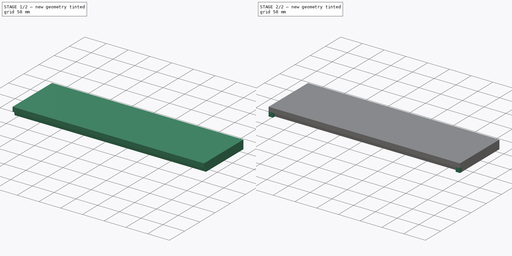
[diagram: build sequence overview — one tinted view per stage of 2, left to right]
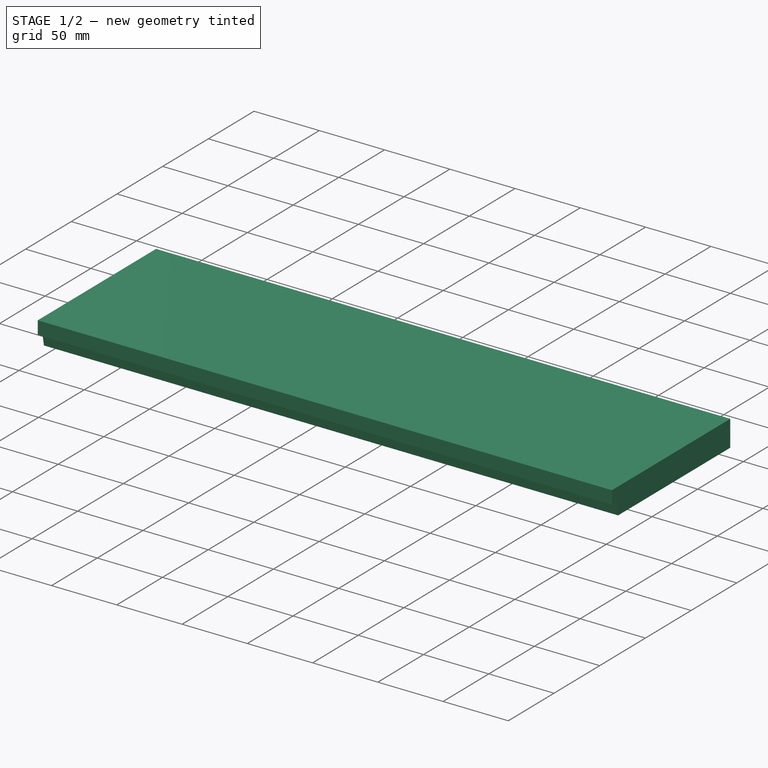
[diagram: stage 1 of 2 — iso view after this stage's code; geometry added in this stage tinted green]
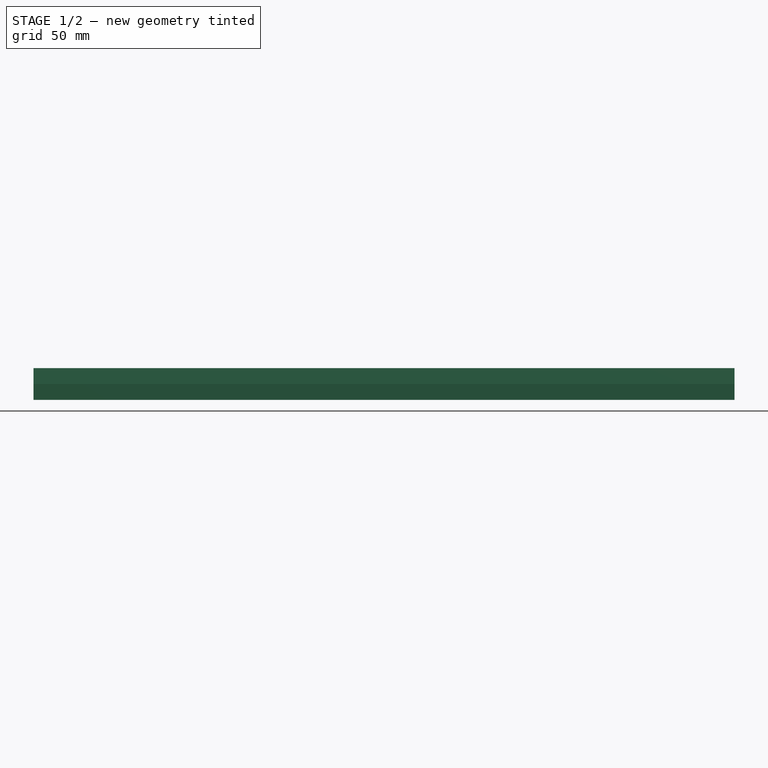
[diagram: stage 1 of 2 — front view after this stage's code; geometry added in this stage tinted green]
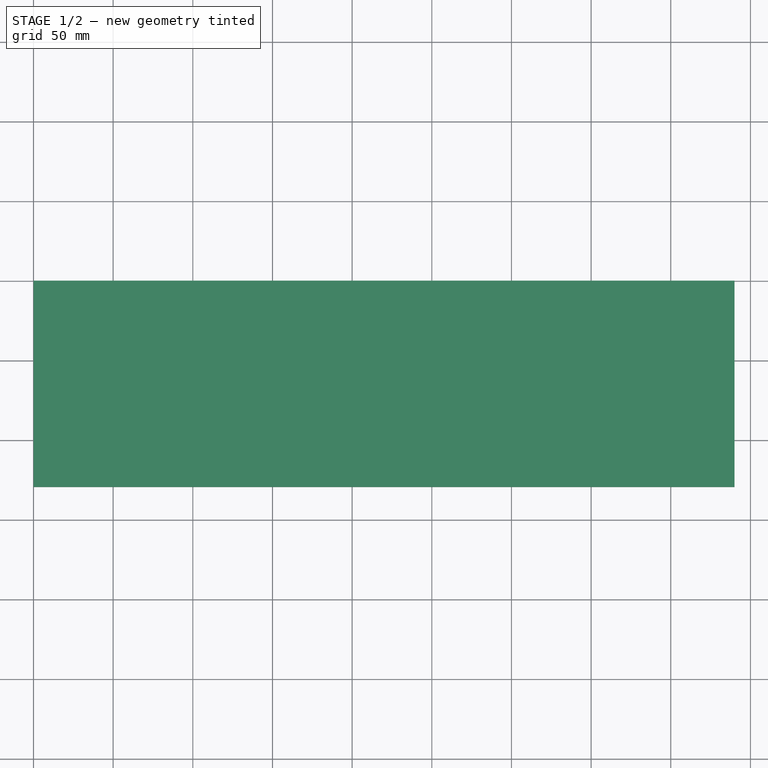
[diagram: stage 1 of 2 — top view after this stage's code; geometry added in this stage tinted green]
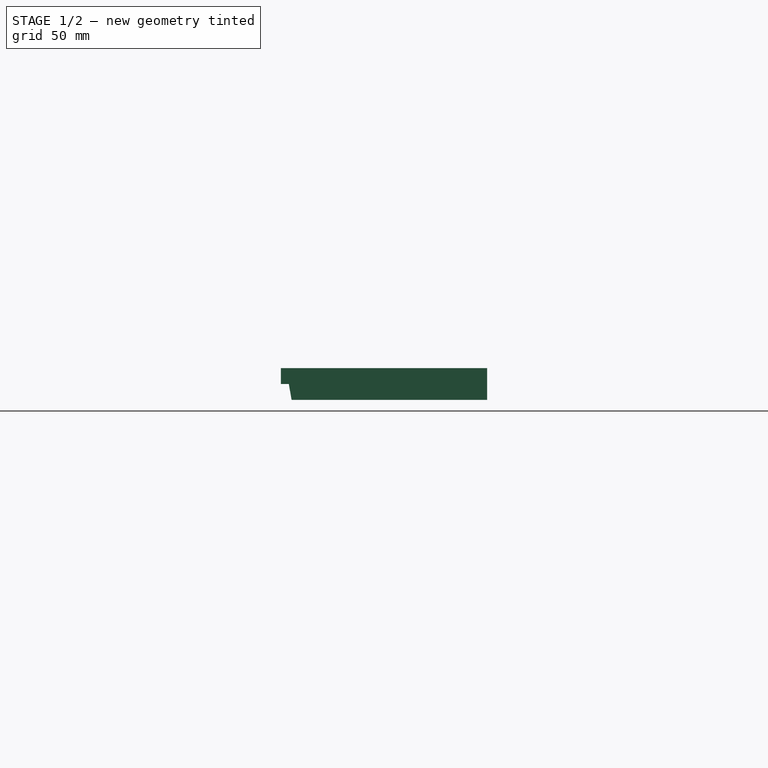
[diagram: stage 1 of 2 — right view after this stage's code; geometry added in this stage tinted green]
FCSTD DOCUMENT  (FreeCAD 0.16R6706 (Git))
Label: back_plate
License: All rights reserved
LicenseURL: http://en.wikipedia.org/wiki/All_rights_reserved
objects: Sketcher::SketchObject×4, PartDesign::Pad×3, PartDesign::Pocket×1, Part::Feature×1
note: 13 computed .brp shape members not serialized (recipe doc carries the construction recipe); baked Part::Feature solids carry a one-line shape summary decoded from their .brp

FEATURE [Sketcher::SketchObject] Sketch
  Placement = pos=(0,0,0) rot=(1,0,0;3.14159rad)
  sketch-geometry (4):
    g0: LineSegment StartX=0 StartY=0 StartZ=0 EndX=440 EndY=0 EndZ=0
    g1: LineSegment StartX=440 StartY=0 StartZ=0 EndX=440 EndY=129.5 EndZ=0
    g2: LineSegment StartX=440 StartY=129.5 StartZ=0 EndX=0 EndY=129.5 EndZ=0
    g3: LineSegment StartX=0 StartY=129.5 StartZ=0 EndX=0 EndY=0 EndZ=0
  constraints (11):
    c: Coincident(g0,g1)
    c: Coincident(g1,g2)
    c: Coincident(g2,g3)
    c: Coincident(g3,g0)
    c: Horizontal(g0)
    c: Horizontal(g2)
    c: Vertical(g1)
    c: Vertical(g3)
    c: Coincident(g0,g-1)
    c: DistanceX(g0,g0) = 440
    c: DistanceY(g1,g1) = 129.5
FEATURE [PartDesign::Pad] Pad
  Length = 20
  Length2 = 100
  Placement = pos=(0,0,0) rot=(1,0,0;3.14159rad)
  Sketch = -> Sketch
  Type = 0
FEATURE [Sketcher::SketchObject] Sketch001
  ExternalGeometry = -> [Pad]
  Placement = pos=(0,0,0) rot=(0.57735,0.57735,-0.57735;4.18879rad)
  Support = -> Pad [Face4]
  sketch-geometry (4):
    g0: LineSegment StartX=-129.5 StartY=20 StartZ=0 EndX=-122.737 EndY=20 EndZ=0
    g1: LineSegment StartX=-122.737 StartY=20 StartZ=0 EndX=-124.5 EndY=10 EndZ=0
    g2: LineSegment StartX=-124.5 StartY=10 StartZ=0 EndX=-129.5 EndY=10 EndZ=0
    g3: LineSegment StartX=-129.5 StartY=10 StartZ=0 EndX=-129.5 EndY=20 EndZ=0
  constraints (11):
    c: Coincident(g0,g1)
    c: Coincident(g1,g2)
    c: Coincident(g2,g3)
    c: Coincident(g3,g0)
    c: Horizontal(g0)
    c: Horizontal(g2)
    c: Vertical(g3)
    c: Coincident(g0,g-4)
    c: DistanceX(g2,g1) = 5
    c: DistanceX(g0,g0) = 6.76327
    c: DistanceY(g2,g0) = 10
FEATURE [PartDesign::Pocket] Pocket
  Length = 5
  Placement = pos=(0,0,0) rot=(1,0,0;3.14159rad)
  Sketch = -> Sketch001
  Type = 1
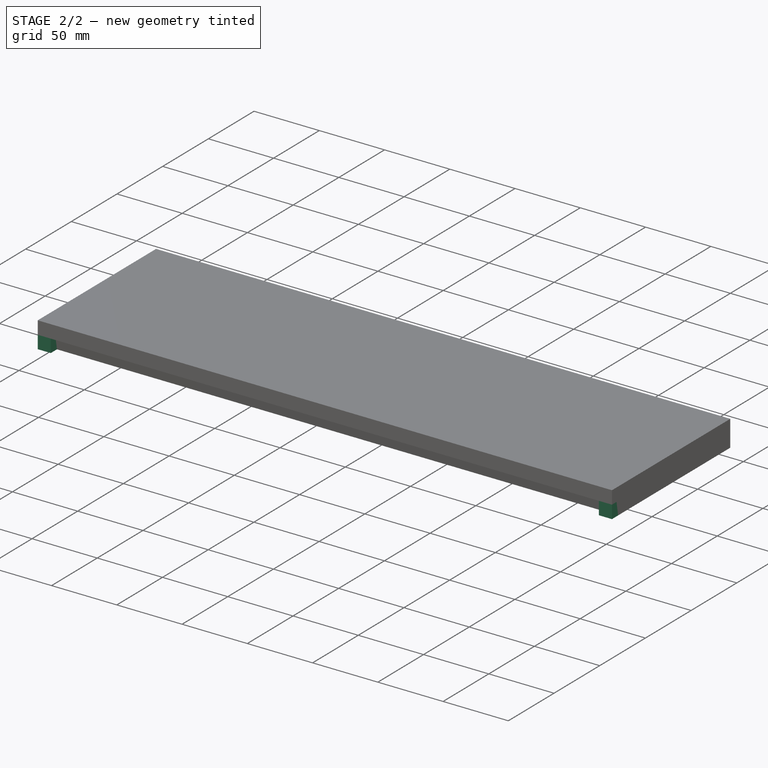
[diagram: stage 2 of 2 — iso view after this stage's code; geometry added in this stage tinted green]
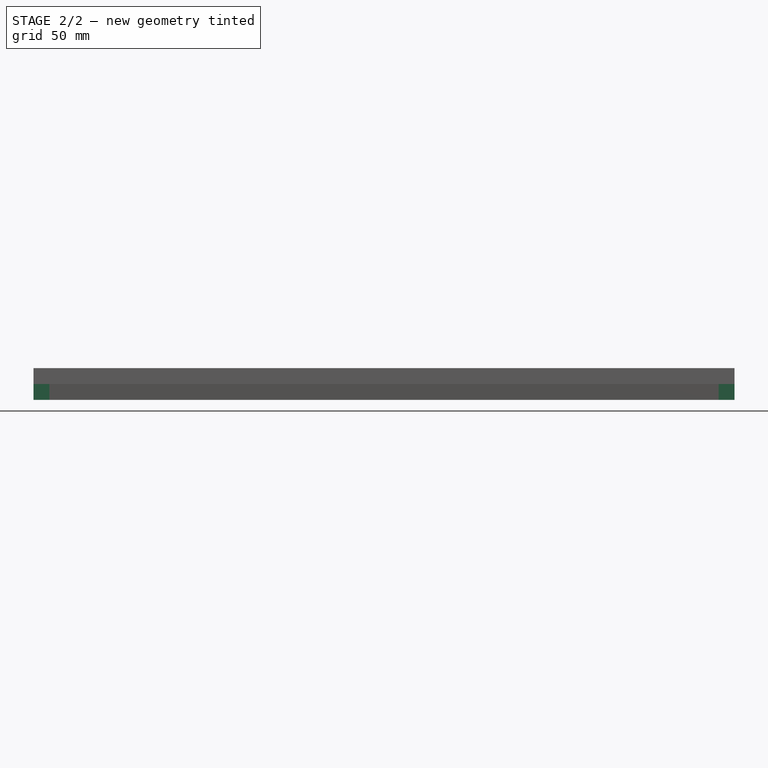
[diagram: stage 2 of 2 — front view after this stage's code; geometry added in this stage tinted green]
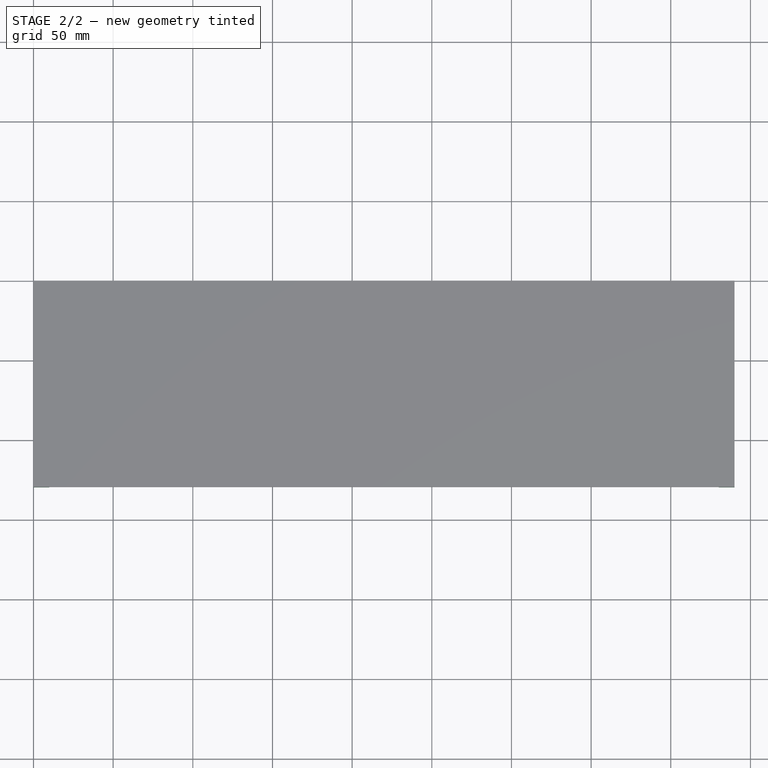
[diagram: stage 2 of 2 — top view after this stage's code; geometry added in this stage tinted green]
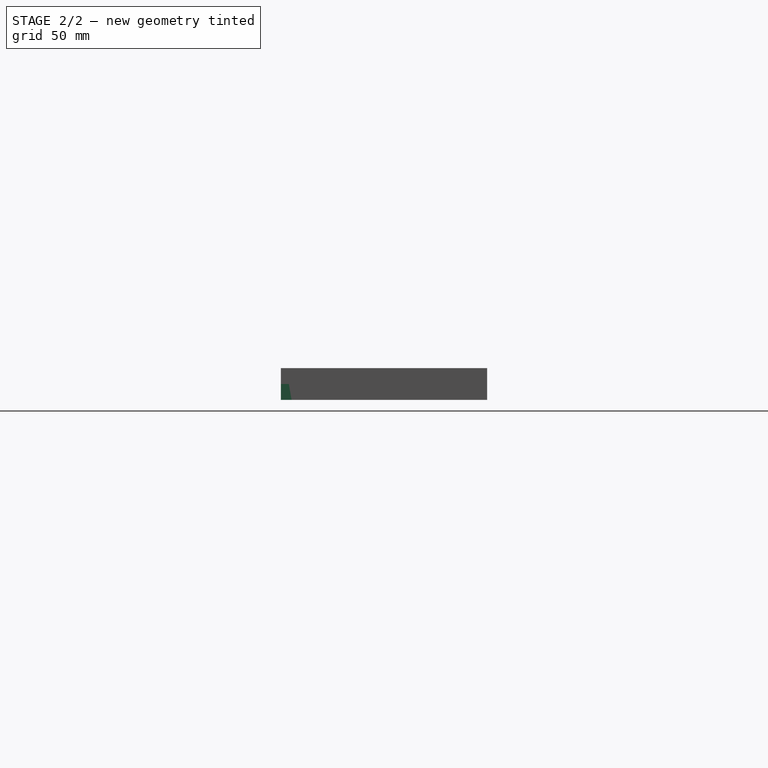
[diagram: stage 2 of 2 — right view after this stage's code; geometry added in this stage tinted green]
FEATURE [Sketcher::SketchObject] Sketch002
  ExternalGeometry = -> [Pocket]
  Placement = pos=(0,0,0) rot=(0.57735,0.57735,-0.57735;4.18879rad)
  Support = -> Pocket [Face2]
  sketch-geometry (4):
    g0: LineSegment StartX=-129.5 StartY=10 StartZ=0 EndX=-124.5 EndY=10 EndZ=0
    g1: LineSegment StartX=-122.737 StartY=20 StartZ=0 EndX=-129.5 EndY=20 EndZ=0
    g2: LineSegment StartX=-129.5 StartY=10 StartZ=0 EndX=-129.5 EndY=20 EndZ=0
    g3: LineSegment StartX=-124.5 StartY=10 StartZ=0 EndX=-122.737 EndY=20 EndZ=0
  constraints (9):
    c: Coincident(g0,g-4)
    c: Coincident(g0,g-4)
    c: Coincident(g1,g-3)
    c: Horizontal(g1)
    c: Coincident(g2,g0)
    c: Coincident(g2,g1)
    c: Vertical(g2)
    c: Coincident(g3,g0)
    c: Coincident(g3,g1)
FEATURE [PartDesign::Pad] Pad001
  Length = 10
  Length2 = 100
  Placement = pos=(0,0,0) rot=(1,0,0;3.14159rad)
  Reversed = true
  Sketch = -> Sketch002
  Type = 0
FEATURE [Sketcher::SketchObject] Sketch003
  ExternalGeometry = -> [Pad001]
  Placement = pos=(440,0,0) rot=(0.57735,-0.57735,0.57735;4.18879rad)
  Support = -> Pad001 [Face3]
  sketch-geometry (4):
    g0: LineSegment StartX=122.737 StartY=20 StartZ=0 EndX=124.5 EndY=10 EndZ=0
    g1: LineSegment StartX=124.5 StartY=10 StartZ=0 EndX=129.5 EndY=10 EndZ=0
    g2: LineSegment StartX=129.5 StartY=10 StartZ=0 EndX=129.5 EndY=20 EndZ=0
    g3: LineSegment StartX=129.5 StartY=20 StartZ=0 EndX=122.737 EndY=20 EndZ=0
  constraints (9):
    c: Coincident(g-3,g0)
    c: Coincident(g0,g-4)
    c: Coincident(g0,g1)
    c: Coincident(g1,g-4)
    c: Coincident(g1,g2)
    c: Vertical(g2)
    c: Coincident(g2,g3)
    c: Horizontal(g3)
    c: Coincident(g0,g3)
FEATURE [PartDesign::Pad] Pad002
  Length = 10
  Length2 = 100
  Placement = pos=(0,0,0) rot=(1,0,0;3.14159rad)
  Reversed = true
  Sketch = -> Sketch003
  Type = 0
FEATURE [Part::Feature] Pad002001  label="Pad003"
  Placement = pos=(0,0,0) rot=(1,0,0;3.14159rad)
  shape: bbox 440 x 129.5 x 20 mm, 16 faces (baked)
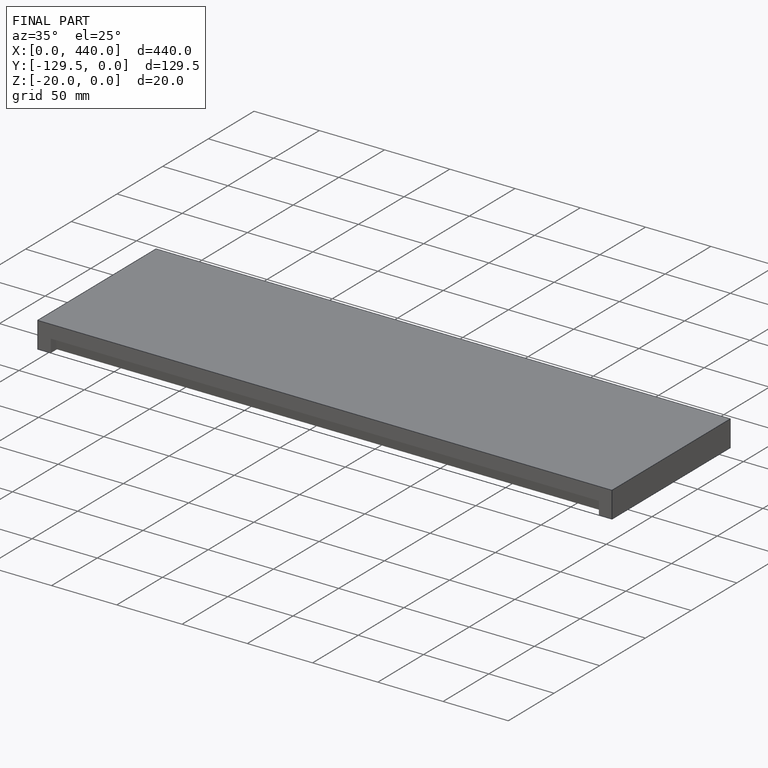
[diagram: finished part — iso view with bounding-box wireframe]
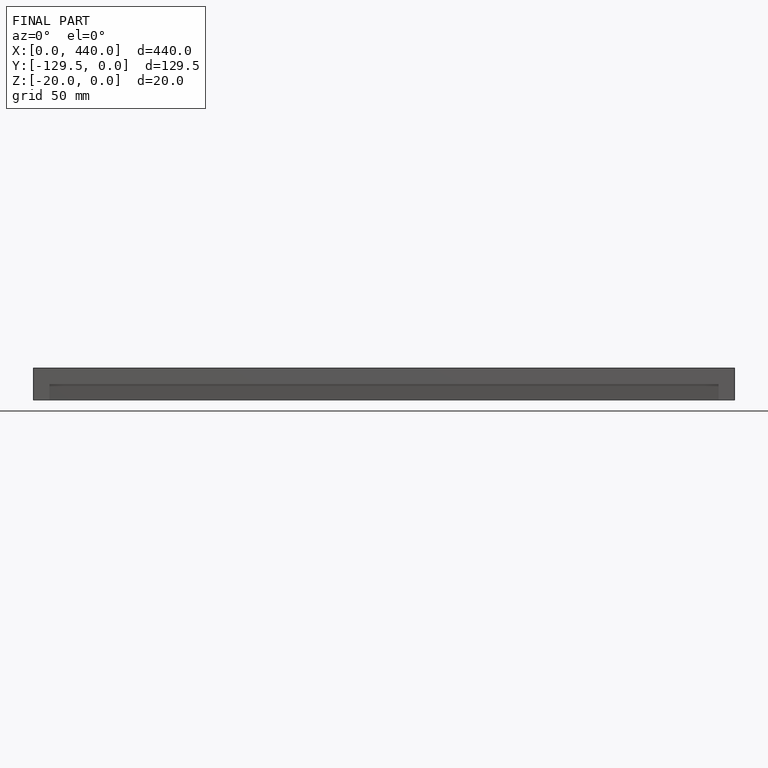
[diagram: finished part — front view with bounding-box wireframe]
